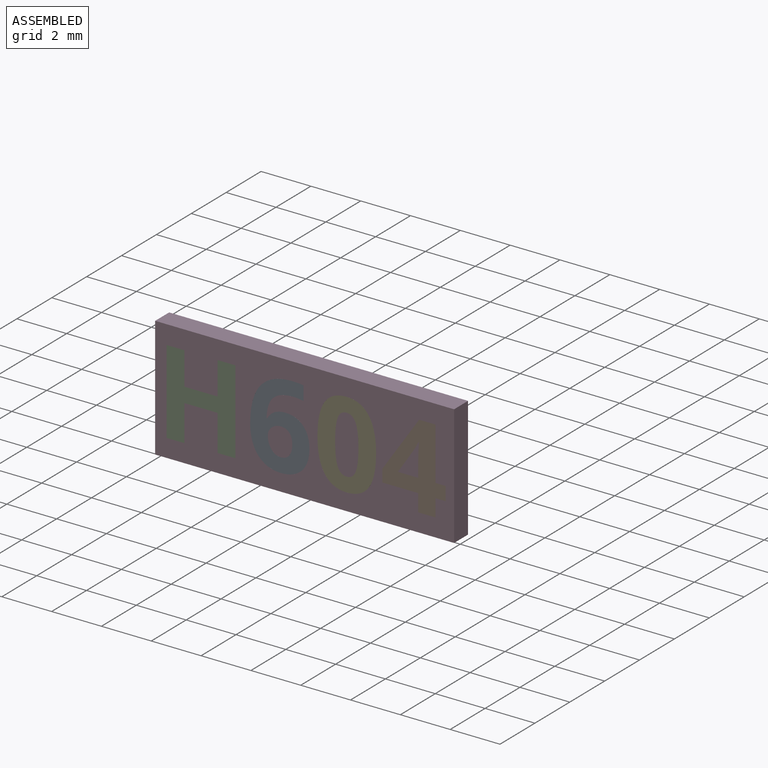
[diagram: assembled view]
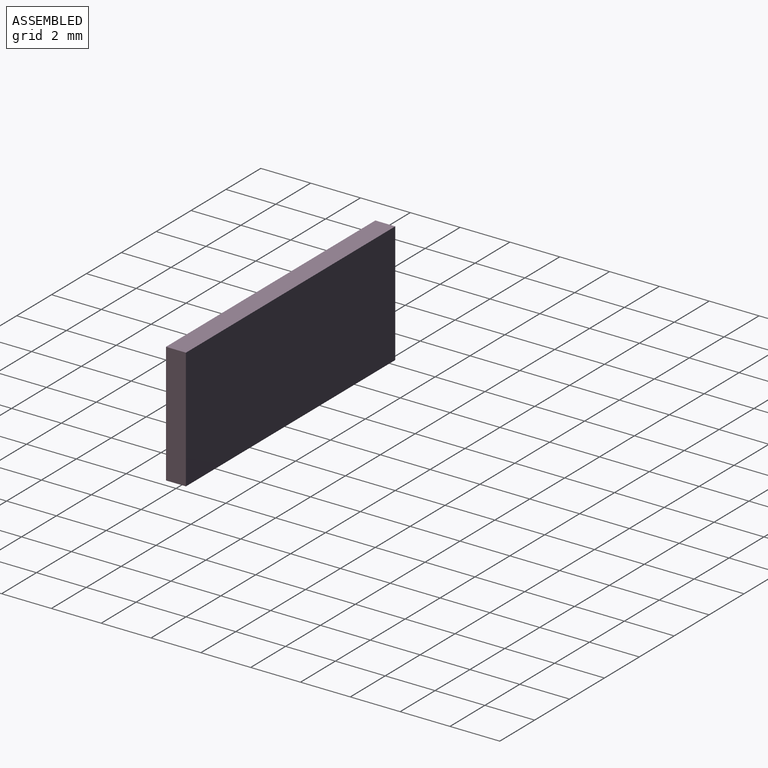
[diagram: assembled view, second angle]
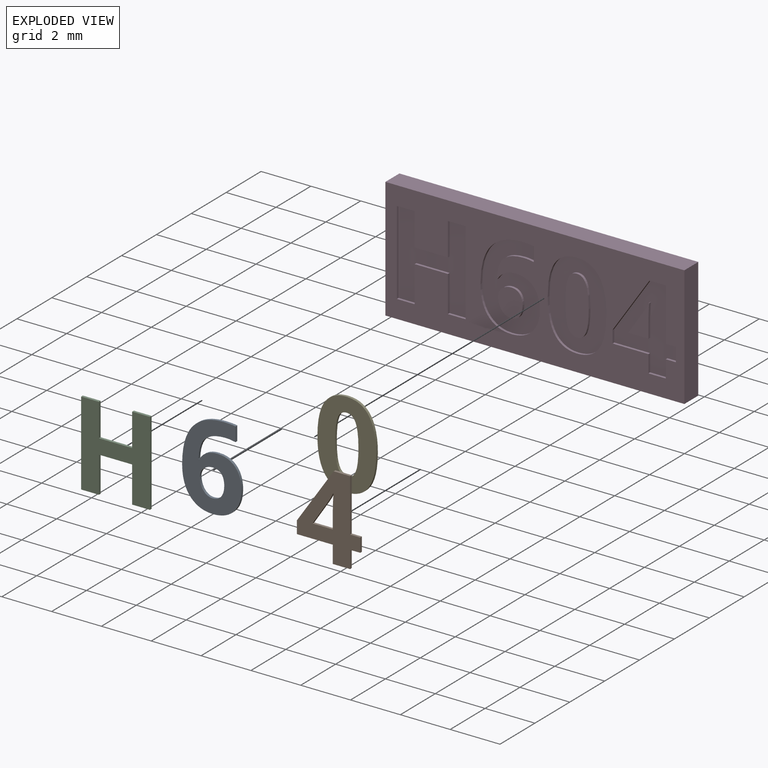
[diagram: exploded view]
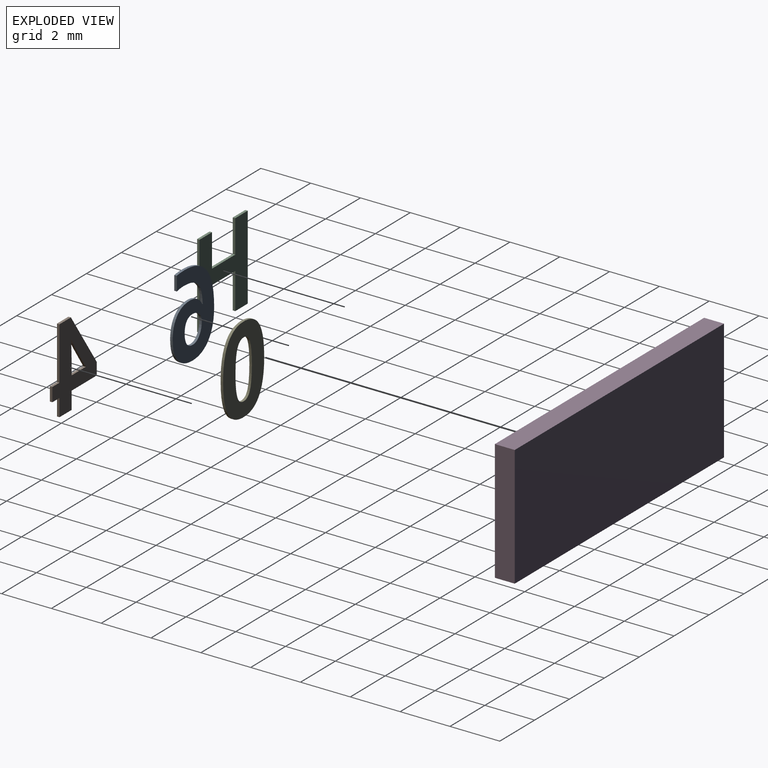
[diagram: exploded view, second angle]
ASSEMBLY  parts=5 mates=4
PART A: 27 faces, bbox 2.4x0.1x3.5 mm
  f0: plane 3.46x2.38mm, normal (0,-1,0), area 4.8mm2, adj f1,f2,f3,f4,f5,f6,f7,f8
  f1: extruded ~0.51x0.43mm, area 0.1mm2, adj f0,f2,f20,f22
  f2: extruded ~0.65x0.17mm, area 0.1mm2, adj f0,f1,f3,f20
  f3: extruded ~0.84x0.32mm, area 0.1mm2, adj f0,f2,f4,f20
  f4: extruded ~0.85x0.3mm, area 0.1mm2, adj f0,f3,f5,f20
  f5: extruded ~0.78x0.26mm, area 0.1mm2, adj f0,f4,f6,f20
  f6: extruded ~0.71x0.28mm, area 0.1mm2, adj f0,f5,f7,f20
  f7: extruded ~0.73x0.39mm, area 0.1mm2, adj f0,f6,f8,f20
  f8: plane 0.1x0.03mm, normal (0,0,1), area 0mm2, adj f0,f7,f9,f20
  f9: extruded ~0.62x0.14mm, area 0.1mm2, adj f0,f8,f10,f20
  f10: extruded ~0.35x0.33mm, area 0mm2, adj f0,f9,f11,f20
  f11: extruded ~0.6x0.11mm, area 0.1mm2, adj f0,f10,f12,f20
  f12: extruded ~0.41x0.1mm, area 0mm2, adj f0,f11,f13,f20
  f13: plane 0.57x0.1mm, normal (1,0,0), area 0.1mm2, adj f0,f12,f14,f20
  f14: extruded ~0.45x0.1mm, area 0mm2, adj f0,f13,f20,f21
  f15: extruded ~0.46x0.14mm, area 0mm2, adj f0,f16,f20,f25
  f16: extruded ~0.33x0.15mm, area 0mm2, adj f0,f15,f17,f20
  f17: extruded ~0.37x0.14mm, area 0mm2, adj f0,f16,f18,f20
  f18: extruded ~0.34x0.14mm, area 0mm2, adj f0,f17,f19,f20
  f19: extruded ~0.39x0.11mm, area 0mm2, adj f0,f18,f20,f24
  f20: plane 3.46x2.38mm, normal (0,1,0), area 4.8mm2, adj f1,f2,f3,f4,f5,f6,f7,f8
  f21: extruded ~1.27x0.49mm, area 0.1mm2, adj f0,f14,f20,f23
  f22: extruded ~0.8x0.15mm, area 0.1mm2, adj f0,f1,f20,f23
  f23: extruded ~1.49x0.42mm, area 0.2mm2, adj f0,f20,f21,f22
  f24: extruded ~0.44x0.12mm, area 0mm2, adj f0,f19,f20,f26
  f25: extruded ~0.37x0.19mm, area 0mm2, adj f0,f15,f20,f26
  f26: extruded ~0.35x0.15mm, area 0mm2, adj f0,f20,f24,f25
PART B: 20 faces, bbox 2.5x0.1x3.4 mm
  f0: plane 3.37x2.54mm, normal (0,-1,0), area 4.3mm2, adj f1,f2,f3,f4,f5,f6,f7,f8
  f1: plane 0.41x0.1mm, normal (0,0,1), area 0mm2, adj f0,f2,f13,f15
  f2: plane 2.12x0.1mm, normal (1,0,0), area 0.2mm2, adj f0,f1,f3,f13
  f3: plane 0.66x0.1mm, normal (0,0,1), area 0.1mm2, adj f0,f2,f4,f13
  f4: plane 2.18x1.48mm, normal (-0.83,0,0.56), area 0.3mm2, adj f0,f3,f5,f13
  f5: plane 0.5x0.1mm, normal (-1,0,0), area 0mm2, adj f0,f4,f6,f13
  f6: plane 1.44x0.1mm, normal (0,0,-1), area 0.1mm2, adj f0,f5,f7,f13
  f7: plane 0.7x0.1mm, normal (-1,0,0), area 0.1mm2, adj f0,f6,f8,f13
  f8: plane 0.7x0.1mm, normal (0,0,-1), area 0.1mm2, adj f0,f7,f13,f14
  f9: plane 0.93x0.62mm, normal (0.83,0,-0.55), area 0.1mm2, adj f0,f10,f13,f18
  f10: extruded ~0.37x0.21mm, area 0mm2, adj f0,f9,f11,f13
  f11: plane 0.1x0.02mm, normal (0,0,-1), area 0mm2, adj f0,f10,f12,f13
  f12: extruded ~0.32x0.1mm, area 0mm2, adj f0,f11,f13,f17
  f13: plane 3.37x2.54mm, normal (0,1,0), area 4.3mm2, adj f1,f2,f3,f4,f5,f6,f7,f8
  f14: plane 0.7x0.1mm, normal (1,0,0), area 0.1mm2, adj f0,f8,f13,f16
  f15: plane 0.55x0.1mm, normal (1,0,0), area 0.1mm2, adj f0,f1,f13,f16
  f16: plane 0.41x0.1mm, normal (0,0,-1), area 0mm2, adj f0,f13,f14,f15
  f17: extruded ~0.42x0.1mm, area 0mm2, adj f0,f12,f13,f19
  f18: plane 0.81x0.1mm, normal (0,0,1), area 0.1mm2, adj f0,f9,f13,f19
  f19: plane 0.57x0.1mm, normal (-1,0,0), area 0.1mm2, adj f0,f13,f17,f18
PART C: 14 faces, bbox 2.8x0.1x3.4 mm
  f0: plane 3.37x2.76mm, normal (0,-1,0), area 5.6mm2, adj f1,f2,f3,f4,f5,f6,f7,f8
  f1: plane 0.71x0.1mm, normal (0,0,1), area 0.1mm2, adj f0,f2,f10,f12
  f2: plane 1.32x0.1mm, normal (-1,0,0), area 0.1mm2, adj f0,f1,f3,f10
  f3: plane 1.33x0.1mm, normal (0,0,1), area 0.1mm2, adj f0,f2,f4,f10
  f4: plane 1.32x0.1mm, normal (1,0,0), area 0.1mm2, adj f0,f3,f5,f10
  f5: plane 0.72x0.1mm, normal (0,0,1), area 0.1mm2, adj f0,f4,f6,f10
  f6: plane 3.37x0.1mm, normal (-1,0,0), area 0.3mm2, adj f0,f5,f7,f10
  f7: plane 0.72x0.1mm, normal (0,0,-1), area 0.1mm2, adj f0,f6,f8,f10
  f8: plane 1.46x0.1mm, normal (1,0,0), area 0.1mm2, adj f0,f7,f9,f10
  f9: plane 1.33x0.1mm, normal (0,0,-1), area 0.1mm2, adj f0,f8,f10,f11
  f10: plane 3.37x2.76mm, normal (0,1,0), area 5.6mm2, adj f1,f2,f3,f4,f5,f6,f7,f8
  f11: plane 1.46x0.1mm, normal (-1,0,0), area 0.1mm2, adj f0,f9,f10,f13
  f12: plane 3.37x0.1mm, normal (1,0,0), area 0.3mm2, adj f0,f1,f10,f13
  f13: plane 0.71x0.1mm, normal (0,0,-1), area 0.1mm2, adj f0,f10,f11,f12
PART D: 84 faces, bbox 12x0.8x4.9 mm
  f0: plane 12x4.85mm, normal (0,-1,0), area 35.2mm2, adj f1,f2,f3,f4,f6,f7,f8,f9
  f1: plane 12x0.8mm, normal (0,0,-1), area 9.6mm2, adj f0,f2,f4,f5
  f2: plane 4.85x0.8mm, normal (1,0,0), area 3.9mm2, adj f0,f1,f3,f5
  f3: plane 12x0.8mm, normal (0,0,1), area 9.6mm2, adj f0,f2,f4,f5
  f4: plane 4.85x0.8mm, normal (-1,0,0), area 3.9mm2, adj f0,f1,f3,f5
  f5: plane 12x4.85mm, normal (0,1,0), area 58.2mm2, adj f1,f2,f3,f4
  f6: plane 0.55x0.1mm, normal (-1,0,0), area 0.1mm2, adj f0,f7,f23,f24
  f7: plane 0.41x0.1mm, normal (0,0,-1), area 0mm2, adj f0,f6,f8,f24
  f8: plane 2.12x0.1mm, normal (-1,0,0), area 0.2mm2, adj f0,f7,f9,f24
  f9: plane 0.66x0.1mm, normal (0,0,-1), area 0.1mm2, adj f0,f8,f10,f24
  f10: plane 2.18x1.48mm, normal (0.83,0,-0.56), area 0.3mm2, adj f0,f9,f11,f24
  f11: plane 0.5x0.1mm, normal (1,0,0), area 0mm2, adj f0,f10,f12,f24
  f12: plane 1.44x0.1mm, normal (0,0,1), area 0.1mm2, adj f0,f11,f13,f24
  f13: plane 0.7x0.1mm, normal (1,0,0), area 0.1mm2, adj f0,f12,f14,f24
  f14: plane 0.7x0.1mm, normal (0,0,1), area 0.1mm2, adj f0,f13,f15,f24
  f15: plane 0.7x0.1mm, normal (-1,0,0), area 0.1mm2, adj f0,f14,f23,f24
  f16: plane 0.81x0.1mm, normal (0,0,-1), area 0.1mm2, adj f17,f22,f24,f25
  f17: plane 0.93x0.62mm, normal (-0.83,0,0.55), area 0.1mm2, adj f16,f18,f24,f25
  f18: extruded ~0.37x0.21mm, area 0mm2, adj f17,f19,f24,f25
  f19: plane 0.1x0.02mm, normal (0,0,1), area 0mm2, adj f18,f20,f24,f25
  f20: extruded ~0.32x0.1mm, area 0mm2, adj f19,f21,f24,f25
  f21: extruded ~0.42x0.1mm, area 0mm2, adj f20,f22,f24,f25
  f22: plane 0.57x0.1mm, normal (1,0,0), area 0.1mm2, adj f16,f21,f24,f25
  f23: plane 0.41x0.1mm, normal (0,0,1), area 0mm2, adj f0,f6,f15,f24
  f24: plane 3.37x2.54mm, normal (0,-1,0), area 4.3mm2, adj f6,f7,f8,f9,f10,f11,f12,f13
  f25: plane 1.3x0.84mm, normal (0,-1,0), area 0.5mm2, adj f16,f17,f18,f19,f20,f21,f22
  f26: extruded ~1.3x0.3mm, area 0.1mm2, adj f0,f27,f41,f42
  f27: extruded ~0.88x0.44mm, area 0.1mm2, adj f0,f26,f28,f42
  f28: extruded ~0.89x0.42mm, area 0.1mm2, adj f0,f27,f29,f42
  f29: extruded ~1.32x0.29mm, area 0.1mm2, adj f0,f28,f30,f42
  f30: extruded ~1.29x0.3mm, area 0.1mm2, adj f0,f29,f31,f42
  f31: extruded ~0.88x0.44mm, area 0.1mm2, adj f0,f30,f32,f42
  f32: extruded ~0.89x0.42mm, area 0.1mm2, adj f0,f31,f41,f42
  f33: extruded ~0.89x0.11mm, area 0.1mm2, adj f34,f40,f42,f43
  f34: extruded ~0.36x0.27mm, area 0mm2, adj f33,f35,f42,f43
  f35: extruded ~0.36x0.27mm, area 0mm2, adj f34,f36,f42,f43
  f36: extruded ~0.89x0.11mm, area 0.1mm2, adj f35,f37,f42,f43
  f37: extruded ~0.89x0.11mm, area 0.1mm2, adj f36,f38,f42,f43
  f38: extruded ~0.36x0.27mm, area 0mm2, adj f37,f39,f42,f43
  f39: extruded ~0.36x0.27mm, area 0mm2, adj f38,f40,f42,f43
  f40: extruded ~0.89x0.11mm, area 0.1mm2, adj f33,f39,f42,f43
  f41: extruded ~1.31x0.29mm, area 0.1mm2, adj f0,f26,f32,f42
  f42: plane 3.47x2.36mm, normal (0,-1,0), area 5mm2, adj f26,f27,f28,f29,f30,f31,f32,f33
  f43: plane 2.32x0.94mm, normal (0,-1,0), area 1.8mm2, adj f33,f34,f35,f36,f37,f38,f39,f40
  f44: extruded ~0.8x0.15mm, area 0.1mm2, adj f0,f45,f68,f69
  f45: extruded ~0.51x0.43mm, area 0.1mm2, adj f0,f44,f46,f69
  f46: extruded ~0.65x0.17mm, area 0.1mm2, adj f0,f45,f47,f69
  f47: extruded ~0.84x0.32mm, area 0.1mm2, adj f0,f46,f48,f69
  f48: extruded ~0.85x0.3mm, area 0.1mm2, adj f0,f47,f49,f69
  f49: extruded ~0.78x0.26mm, area 0.1mm2, adj f0,f48,f50,f69
  f50: extruded ~0.71x0.28mm, area 0.1mm2, adj f0,f49,f51,f69
  f51: extruded ~0.73x0.39mm, area 0.1mm2, adj f0,f50,f52,f69
  f52: plane 0.1x0.03mm, normal (0,0,-1), area 0mm2, adj f0,f51,f53,f69
  f53: extruded ~0.62x0.14mm, area 0.1mm2, adj f0,f52,f54,f69
  f54: extruded ~0.35x0.33mm, area 0mm2, adj f0,f53,f55,f69
  f55: extruded ~0.6x0.11mm, area 0.1mm2, adj f0,f54,f56,f69
  f56: extruded ~0.41x0.1mm, area 0mm2, adj f0,f55,f57,f69
  f57: plane 0.57x0.1mm, normal (-1,0,0), area 0.1mm2, adj f0,f56,f58,f69
  f58: extruded ~0.45x0.1mm, area 0mm2, adj f0,f57,f59,f69
  f59: extruded ~1.27x0.49mm, area 0.1mm2, adj f0,f58,f68,f69
  f60: extruded ~0.37x0.19mm, area 0mm2, adj f61,f67,f69,f70
  f61: extruded ~0.46x0.14mm, area 0mm2, adj f60,f62,f69,f70
  f62: extruded ~0.33x0.15mm, area 0mm2, adj f61,f63,f69,f70
  f63: extruded ~0.37x0.14mm, area 0mm2, adj f62,f64,f69,f70
  f64: extruded ~0.34x0.14mm, area 0mm2, adj f63,f65,f69,f70
  f65: extruded ~0.39x0.11mm, area 0mm2, adj f64,f66,f69,f70
  f66: extruded ~0.44x0.12mm, area 0mm2, adj f65,f67,f69,f70
  f67: extruded ~0.35x0.15mm, area 0mm2, adj f60,f66,f69,f70
  f68: extruded ~1.49x0.42mm, area 0.2mm2, adj f0,f44,f59,f69
  f69: plane 3.46x2.38mm, normal (0,-1,0), area 4.8mm2, adj f44,f45,f46,f47,f48,f49,f50,f51
  f70: plane 1.12x0.98mm, normal (0,-1,0), area 0.9mm2, adj f60,f61,f62,f63,f64,f65,f66,f67
  f71: plane 3.37x0.1mm, normal (-1,0,0), area 0.3mm2, adj f0,f72,f82,f83
  f72: plane 0.71x0.1mm, normal (0,0,-1), area 0.1mm2, adj f0,f71,f73,f83
  f73: plane 1.32x0.1mm, normal (1,0,0), area 0.1mm2, adj f0,f72,f74,f83
  f74: plane 1.33x0.1mm, normal (0,0,-1), area 0.1mm2, adj f0,f73,f75,f83
  f75: plane 1.32x0.1mm, normal (-1,0,0), area 0.1mm2, adj f0,f74,f76,f83
  f76: plane 0.72x0.1mm, normal (0,0,-1), area 0.1mm2, adj f0,f75,f77,f83
  f77: plane 3.37x0.1mm, normal (1,0,0), area 0.3mm2, adj f0,f76,f78,f83
  f78: plane 0.72x0.1mm, normal (0,0,1), area 0.1mm2, adj f0,f77,f79,f83
  f79: plane 1.46x0.1mm, normal (-1,0,0), area 0.1mm2, adj f0,f78,f80,f83
  f80: plane 1.33x0.1mm, normal (0,0,1), area 0.1mm2, adj f0,f79,f81,f83
  f81: plane 1.46x0.1mm, normal (1,0,0), area 0.1mm2, adj f0,f80,f82,f83
  f82: plane 0.71x0.1mm, normal (0,0,1), area 0.1mm2, adj f0,f71,f81,f83
  f83: plane 3.37x2.76mm, normal (0,-1,0), area 5.6mm2, adj f71,f72,f73,f74,f75,f76,f77,f78
PART E: 18 faces, bbox 2.4x0.1x3.5 mm
  f0: plane 3.47x2.36mm, normal (0,-1,0), area 5mm2, adj f1,f2,f3,f4,f5,f6,f7,f8
  f1: extruded ~0.88x0.44mm, area 0.1mm2, adj f0,f2,f11,f13
  f2: extruded ~0.89x0.42mm, area 0.1mm2, adj f0,f1,f3,f11
  f3: extruded ~1.32x0.29mm, area 0.1mm2, adj f0,f2,f4,f11
  f4: extruded ~1.29x0.3mm, area 0.1mm2, adj f0,f3,f5,f11
  f5: extruded ~0.88x0.44mm, area 0.1mm2, adj f0,f4,f11,f12
  f6: extruded ~0.36x0.27mm, area 0mm2, adj f0,f7,f11,f16
  f7: extruded ~0.36x0.27mm, area 0mm2, adj f0,f6,f8,f11
  f8: extruded ~0.89x0.11mm, area 0.1mm2, adj f0,f7,f9,f11
  f9: extruded ~0.89x0.11mm, area 0.1mm2, adj f0,f8,f10,f11
  f10: extruded ~0.36x0.27mm, area 0mm2, adj f0,f9,f11,f15
  f11: plane 3.47x2.36mm, normal (0,1,0), area 5mm2, adj f1,f2,f3,f4,f5,f6,f7,f8
  f12: extruded ~0.89x0.42mm, area 0.1mm2, adj f0,f5,f11,f14
  f13: extruded ~1.3x0.3mm, area 0.1mm2, adj f0,f1,f11,f14
  f14: extruded ~1.31x0.29mm, area 0.1mm2, adj f0,f11,f12,f13
  f15: extruded ~0.36x0.27mm, area 0mm2, adj f0,f10,f11,f17
  f16: extruded ~0.89x0.11mm, area 0.1mm2, adj f0,f6,f11,f17
  f17: extruded ~0.89x0.11mm, area 0.1mm2, adj f0,f11,f15,f16
PLACE A t=(-2.47,0.42,0)mm
PLACE B t=(2.96,0.42,0)mm
PLACE C t=(-0.03,0.42,0)mm
PLACE D t=(0.02,0.42,0)mm
PLACE E t=(-1.13,0.42,0)mm
MATE fastened B.f0 <-> D.f0  axis (0,-1,0) through (4.58,-0.38,-1.7)mm
MATE fastened C.f0 <-> D.f0  axis (0,-1,0) through (-5.52,-0.38,-1.7)mm
MATE fastened E.f0 <-> D.f43  axis (0,-1,0) through (1.71,-0.38,-1.17)mm
MATE fastened A.f0 <-> D.f0  axis (0,-1,0) through (-0.02,-0.38,1.11)mm
